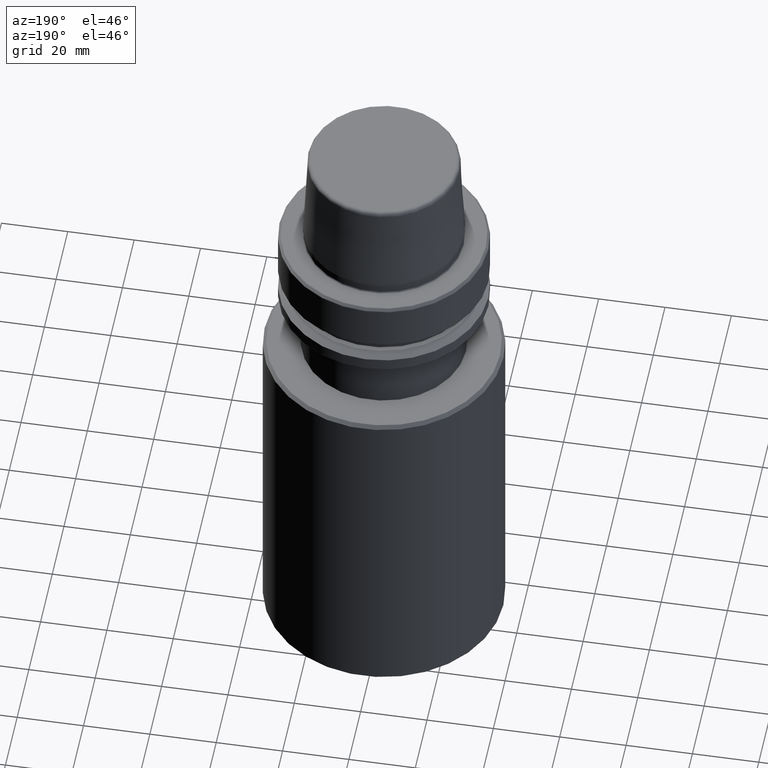
[diagram: clean part render]
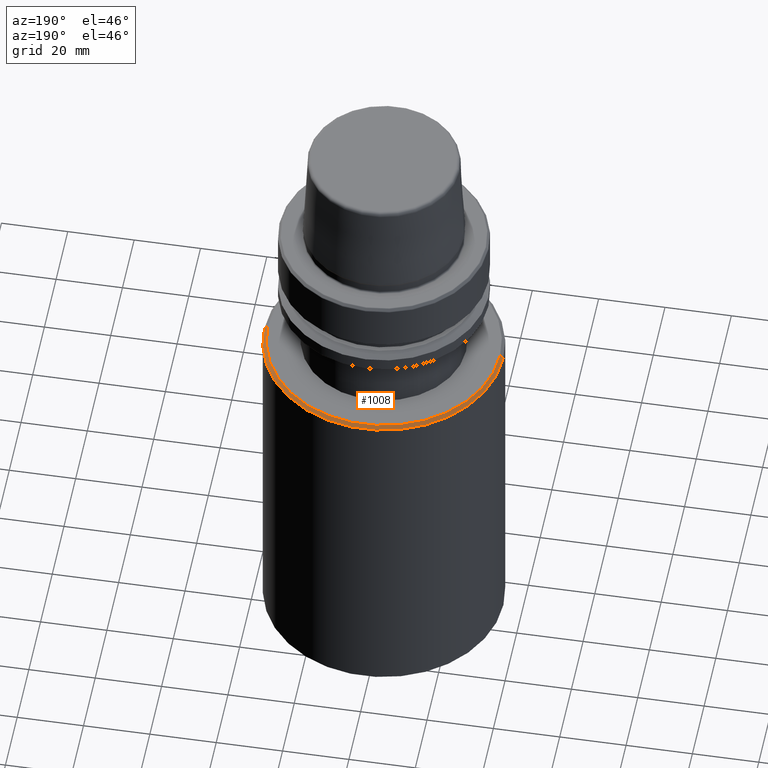
[diagram: same view with one face highlighted and labeled with its STEP entity id]
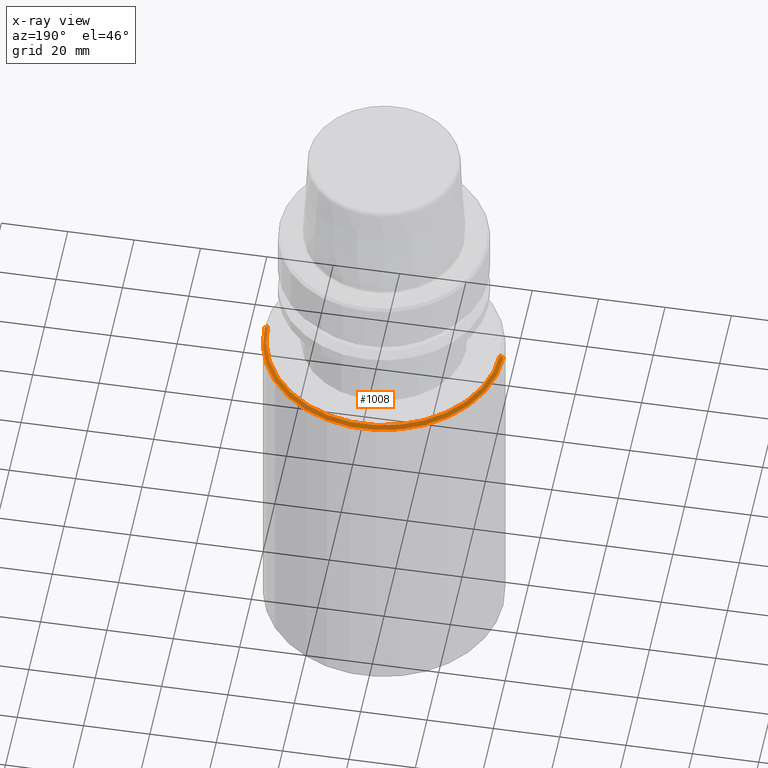
[diagram: x-ray of the same camera — body ghosted, the highlighted face saturated]
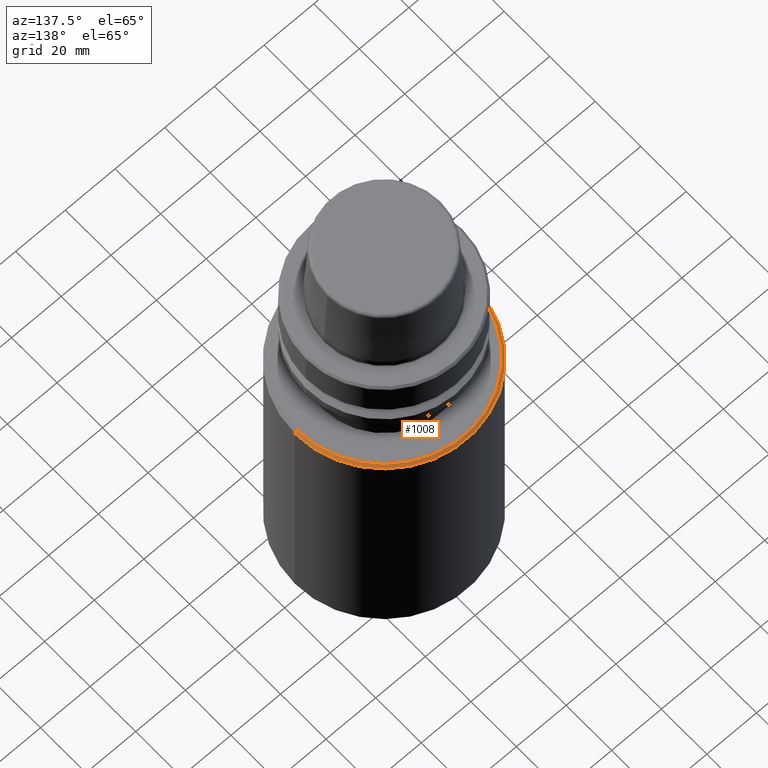
[diagram: same view with one face highlighted and labeled with its STEP entity id]
A machine part, auxiliary view. The second image highlights one B-rep face of the part: STEP entity #1008.
The next image is the same camera in x-ray: the body ghosted, the highlighted face saturated — about 0% of this face is hidden behind the body in this view.
A second angle (auxiliary view) of the same face is appended — the face is thin or edge-on in the first view.
In plain terms, the highlighted conical surface has half-angle 45 deg.
Its self-contained STEP definition (entity closure, byte-faithful):
#44 = EDGE_CURVE ( 'NONE', #1240, #580, #181, .T. ) ;
#74 = ORIENTED_EDGE ( 'NONE', *, *, #195, .T. ) ;
#97 = CARTESIAN_POINT ( 'NONE',  ( 0.0000000000000000000, 0.0000000000000000000, -46.50000000000001400 ) ) ;
#115 = CARTESIAN_POINT ( 'NONE',  ( -34.99999999999999300, 0.0000000000000000000, -45.50000000000001400 ) ) ;
#151 = CARTESIAN_POINT ( 'NONE',  ( -36.00000000000000000, 0.0000000000000000000, -46.50000000000001400 ) ) ;
#181 = LINE ( 'NONE', #940, #1301 ) ;
#188 = AXIS2_PLACEMENT_3D ( 'NONE', #1050, #313, #941 ) ;
#195 = EDGE_CURVE ( 'NONE', #580, #980, #1051, .T. ) ;
#249 = DIRECTION ( 'NONE',  ( -0.7071067811865474600, 0.0000000000000000000, -0.7071067811865475700 ) ) ;
#273 = EDGE_LOOP ( 'NONE', ( #524, #275, #74, #1081 ) ) ;
#275 = ORIENTED_EDGE ( 'NONE', *, *, #44, .T. ) ;
#313 = DIRECTION ( 'NONE',  ( -0.0000000000000000000, -0.0000000000000000000, 1.000000000000000000 ) ) ;
#328 = VECTOR ( 'NONE', #249, 1000.000000000000000 ) ;
#444 = FACE_OUTER_BOUND ( 'NONE', #273, .T. ) ;
#499 = LINE ( 'NONE', #151, #328 ) ;
#515 = AXIS2_PLACEMENT_3D ( 'NONE', #97, #1155, #1384 ) ;
#517 = CARTESIAN_POINT ( 'NONE',  ( -36.00000000000000000, 0.0000000000000000000, -46.50000000000001400 ) ) ;
#524 = ORIENTED_EDGE ( 'NONE', *, *, #880, .F. ) ;
#580 = VERTEX_POINT ( 'NONE', #1288 ) ;
#635 = CONICAL_SURFACE ( 'NONE', #515, 36.00000000000000000, 0.7853981633974482800 ) ;
#842 = VERTEX_POINT ( 'NONE', #115 ) ;
#880 = EDGE_CURVE ( 'NONE', #1240, #842, #1309, .T. ) ;
#883 = CARTESIAN_POINT ( 'NONE',  ( 34.99999999999999300, 4.347496136973103300E-015, -45.50000000000001400 ) ) ;
#940 = CARTESIAN_POINT ( 'NONE',  ( 36.00000000000000000, 4.408728476930470900E-015, -46.50000000000001400 ) ) ;
#941 = DIRECTION ( 'NONE',  ( 1.000000000000000000, 0.0000000000000000000, 0.0000000000000000000 ) ) ;
#960 = CARTESIAN_POINT ( 'NONE',  ( 0.0000000000000000000, 0.0000000000000000000, -46.50000000000001400 ) ) ;
#980 = VERTEX_POINT ( 'NONE', #517 ) ;
#1008 = ADVANCED_FACE ( 'NONE', ( #444 ), #635, .T. ) ;
#1050 = CARTESIAN_POINT ( 'NONE',  ( 0.0000000000000000000, 0.0000000000000000000, -45.50000000000001400 ) ) ;
#1051 = CIRCLE ( 'NONE', #1235, 36.00000000000000000 ) ;
#1056 = DIRECTION ( 'NONE',  ( 0.7071067811865474600, 8.659560562354931600E-017, -0.7071067811865475700 ) ) ;
#1081 = ORIENTED_EDGE ( 'NONE', *, *, #1274, .F. ) ;
#1155 = DIRECTION ( 'NONE',  ( 0.0000000000000000000, 0.0000000000000000000, -1.000000000000000000 ) ) ;
#1235 = AXIS2_PLACEMENT_3D ( 'NONE', #960, #1387, #1263 ) ;
#1240 = VERTEX_POINT ( 'NONE', #883 ) ;
#1263 = DIRECTION ( 'NONE',  ( 1.000000000000000000, 0.0000000000000000000, 0.0000000000000000000 ) ) ;
#1274 = EDGE_CURVE ( 'NONE', #842, #980, #499, .T. ) ;
#1288 = CARTESIAN_POINT ( 'NONE',  ( 36.00000000000000000, 4.408728476930470900E-015, -46.50000000000001400 ) ) ;
#1301 = VECTOR ( 'NONE', #1056, 1000.000000000000000 ) ;
#1309 = CIRCLE ( 'NONE', #188, 34.99999999999999300 ) ;
#1384 = DIRECTION ( 'NONE',  ( -1.000000000000000000, 0.0000000000000000000, 0.0000000000000000000 ) ) ;
#1387 = DIRECTION ( 'NONE',  ( -0.0000000000000000000, -0.0000000000000000000, 1.000000000000000000 ) ) ;